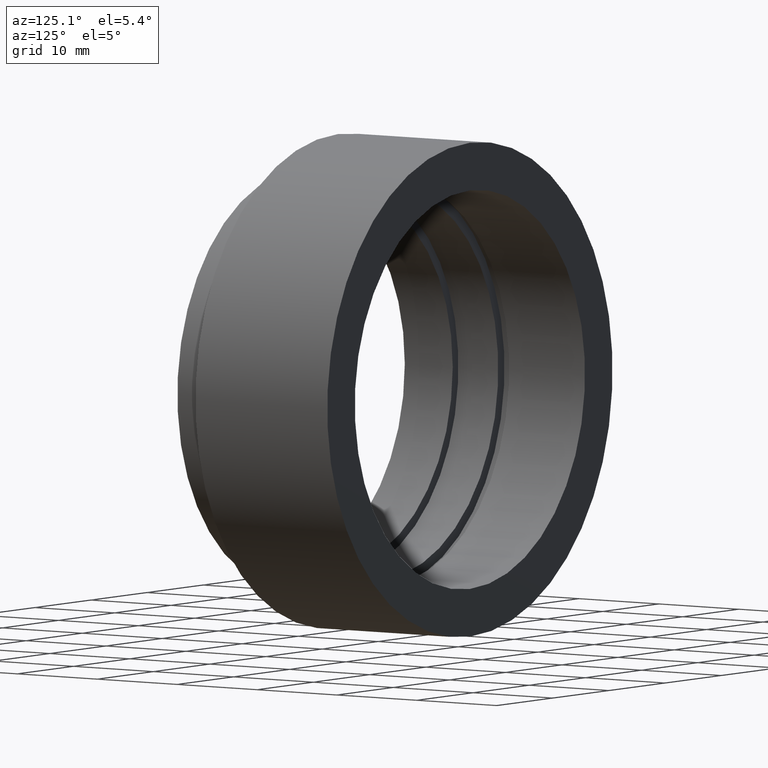
[diagram: clean part render]
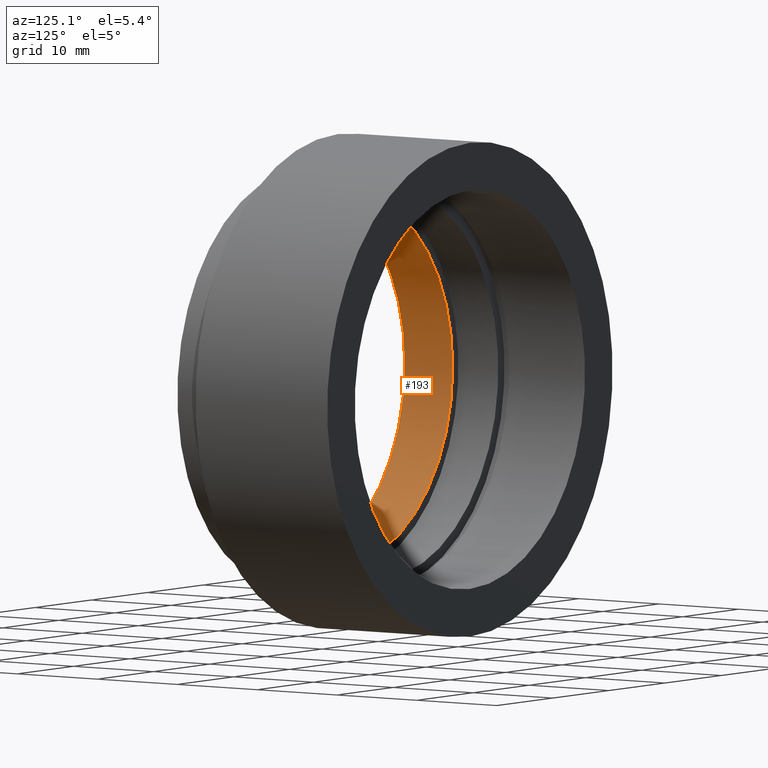
[diagram: same view with one face highlighted and labeled with its STEP entity id]
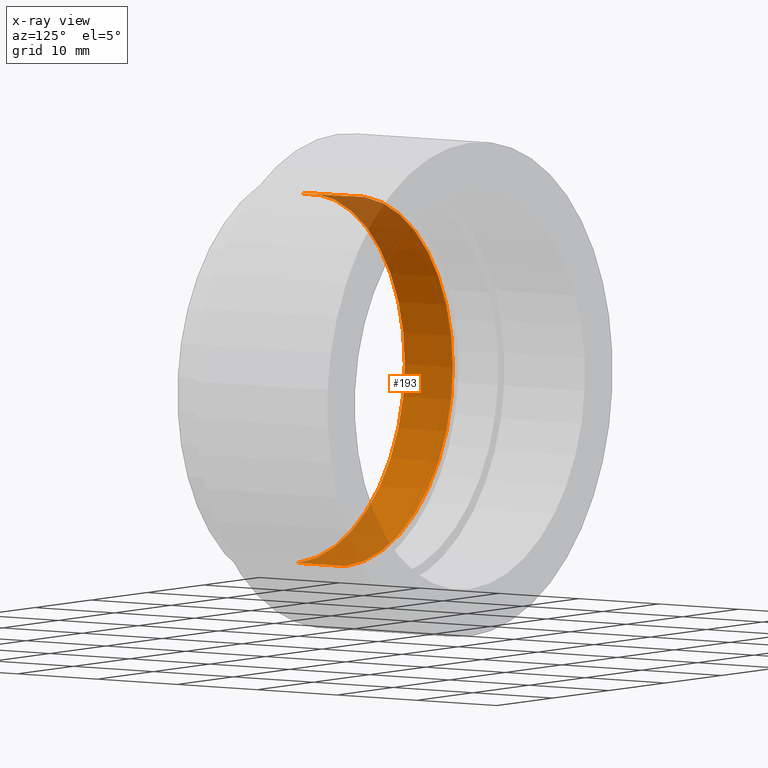
[diagram: x-ray of the same camera — body ghosted, the highlighted face saturated]
A machine part, auxiliary view. The second image highlights one B-rep face of the part: STEP entity #193.
The next image is the same camera in x-ray: the body ghosted, the highlighted face saturated — about 24% of this face is hidden behind the body in this view.
In plain terms, the highlighted cylindrical surface (partial cylindrical patch) has radius 19 mm, axis along (-0, -1, -0).
Its self-contained STEP definition (entity closure, byte-faithful):
#61 = CIRCLE ( 'NONE', #580, 19.00000000000000000 ) ;
#77 = ORIENTED_EDGE ( 'NONE', *, *, #366, .T. ) ;
#96 = ORIENTED_EDGE ( 'NONE', *, *, #375, .T. ) ;
#98 = VERTEX_POINT ( 'NONE', #531 ) ;
#102 = DIRECTION ( 'NONE',  ( -0.0000000000000000000, -1.000000000000000000, -0.0000000000000000000 ) ) ;
#109 = EDGE_LOOP ( 'NONE', ( #398, #96, #77, #157 ) ) ;
#121 = CARTESIAN_POINT ( 'NONE',  ( 0.0000000000000000000, 0.0000000000000000000, -19.00000000000000000 ) ) ;
#139 = DIRECTION ( 'NONE',  ( 0.0000000000000000000, 0.0000000000000000000, -1.000000000000000000 ) ) ;
#144 = DIRECTION ( 'NONE',  ( -0.0000000000000000000, -1.000000000000000000, -0.0000000000000000000 ) ) ;
#157 = ORIENTED_EDGE ( 'NONE', *, *, #221, .F. ) ;
#188 = DIRECTION ( 'NONE',  ( -0.0000000000000000000, -1.000000000000000000, -0.0000000000000000000 ) ) ;
#193 = ADVANCED_FACE ( 'NONE', ( #386 ), #369, .F. ) ;
#205 = DIRECTION ( 'NONE',  ( -0.0000000000000000000, -1.000000000000000000, -0.0000000000000000000 ) ) ;
#221 = EDGE_CURVE ( 'NONE', #98, #402, #521, .T. ) ;
#249 = VECTOR ( 'NONE', #622, 1000.000000000000000 ) ;
#300 = CARTESIAN_POINT ( 'NONE',  ( 0.0000000000000000000, 5.999999999999999100, 0.0000000000000000000 ) ) ;
#302 = CARTESIAN_POINT ( 'NONE',  ( 2.326828918379971000E-015, -6.123233995736767300E-016, 19.00000000000000000 ) ) ;
#319 = CARTESIAN_POINT ( 'NONE',  ( 0.0000000000000000000, -6.123233995736767300E-016, -19.00000000000000000 ) ) ;
#323 = LINE ( 'NONE', #541, #249 ) ;
#351 = CARTESIAN_POINT ( 'NONE',  ( 2.326828918379971000E-015, 5.999999999999999100, 19.00000000000000000 ) ) ;
#355 = DIRECTION ( 'NONE',  ( 0.0000000000000000000, 0.0000000000000000000, -1.000000000000000000 ) ) ;
#366 = EDGE_CURVE ( 'NONE', #426, #402, #374, .T. ) ;
#369 = CYLINDRICAL_SURFACE ( 'NONE', #662, 19.00000000000000000 ) ;
#374 = CIRCLE ( 'NONE', #487, 19.00000000000000000 ) ;
#375 = EDGE_CURVE ( 'NONE', #647, #426, #323, .T. ) ;
#386 = FACE_OUTER_BOUND ( 'NONE', #109, .T. ) ;
#398 = ORIENTED_EDGE ( 'NONE', *, *, #627, .F. ) ;
#402 = VERTEX_POINT ( 'NONE', #319 ) ;
#426 = VERTEX_POINT ( 'NONE', #302 ) ;
#445 = CARTESIAN_POINT ( 'NONE',  ( 0.0000000000000000000, 0.0000000000000000000, 0.0000000000000000000 ) ) ;
#487 = AXIS2_PLACEMENT_3D ( 'NONE', #539, #205, #139 ) ;
#499 = VECTOR ( 'NONE', #188, 1000.000000000000000 ) ;
#521 = LINE ( 'NONE', #121, #499 ) ;
#531 = CARTESIAN_POINT ( 'NONE',  ( 0.0000000000000000000, 5.999999999999999100, -19.00000000000000000 ) ) ;
#539 = CARTESIAN_POINT ( 'NONE',  ( 0.0000000000000000000, -6.123233995736767300E-016, 0.0000000000000000000 ) ) ;
#541 = CARTESIAN_POINT ( 'NONE',  ( 2.326828918379971000E-015, 0.0000000000000000000, 19.00000000000000000 ) ) ;
#580 = AXIS2_PLACEMENT_3D ( 'NONE', #300, #102, #355 ) ;
#610 = DIRECTION ( 'NONE',  ( 0.0000000000000000000, 0.0000000000000000000, -1.000000000000000000 ) ) ;
#622 = DIRECTION ( 'NONE',  ( -0.0000000000000000000, -1.000000000000000000, -0.0000000000000000000 ) ) ;
#627 = EDGE_CURVE ( 'NONE', #647, #98, #61, .T. ) ;
#647 = VERTEX_POINT ( 'NONE', #351 ) ;
#662 = AXIS2_PLACEMENT_3D ( 'NONE', #445, #144, #610 ) ;